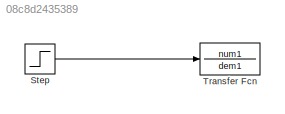
MODEL slx_08c8d2435389
KIND model
CONFIG AbsTol = auto
CONFIG EnableMultiTasking = off
CONFIG FixedStep = auto
CONFIG MaxStep = auto
CONFIG MinStep = auto
CONFIG RelTol = 1e-3
CONFIG SampleTimeConstraint = Unconstrained
CONFIG Solver = VariableStepAuto
CONFIG SolverName = VariableStepAuto
CONFIG StartTime = 0.0
CONFIG StopTime = 10.0
BLOCK [Step] Step
  After = u
  SampleTime = 0
  Time = Tu
BLOCK [TransferFcn] Transfer Fcn
  Denominator = dem1
  Numerator = num1
LINE Step:1 -> Transfer Fcn:1
